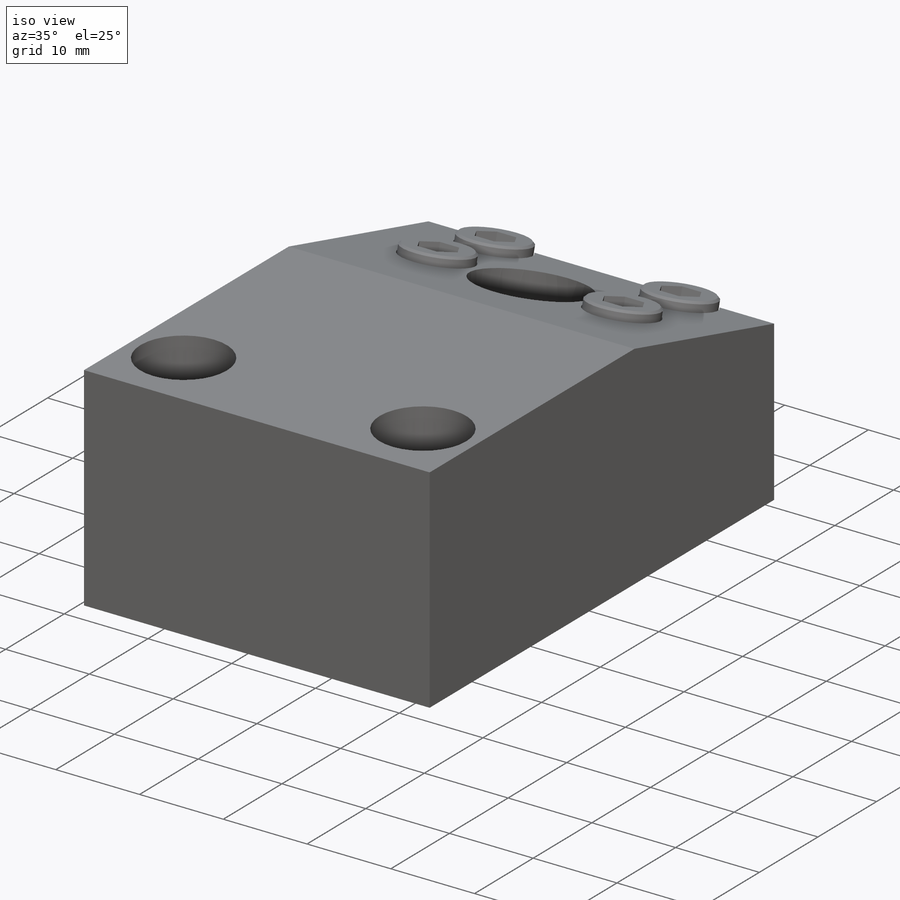
[diagram: iso view]
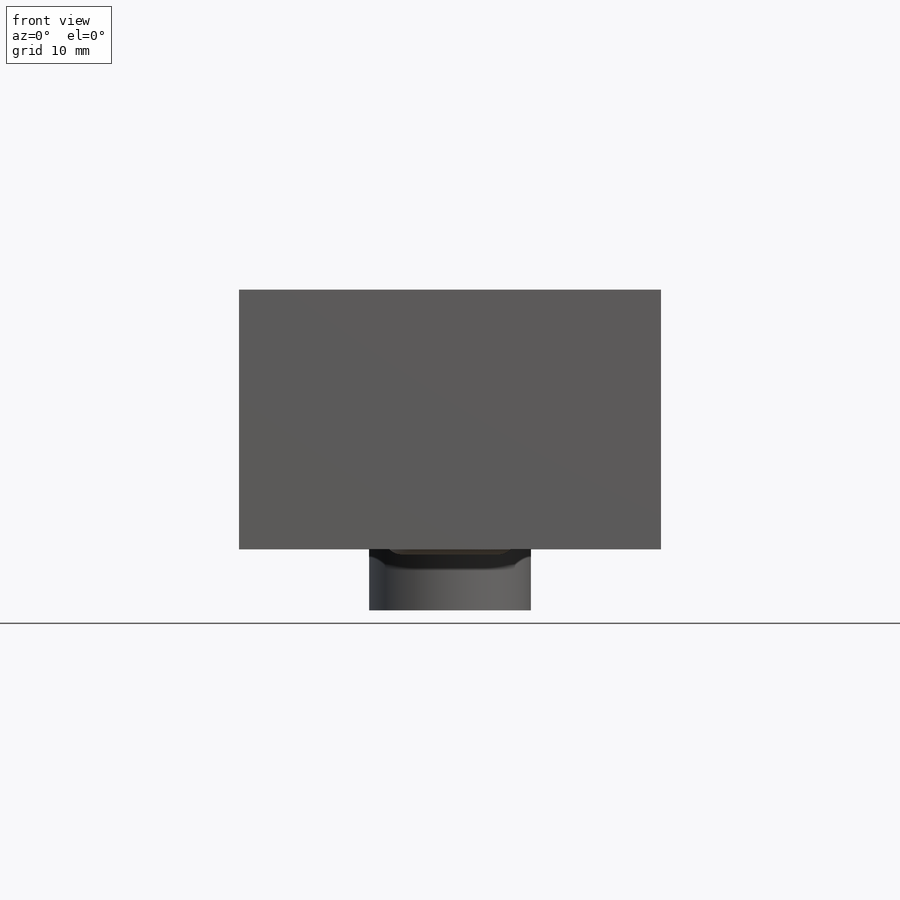
[diagram: front view]
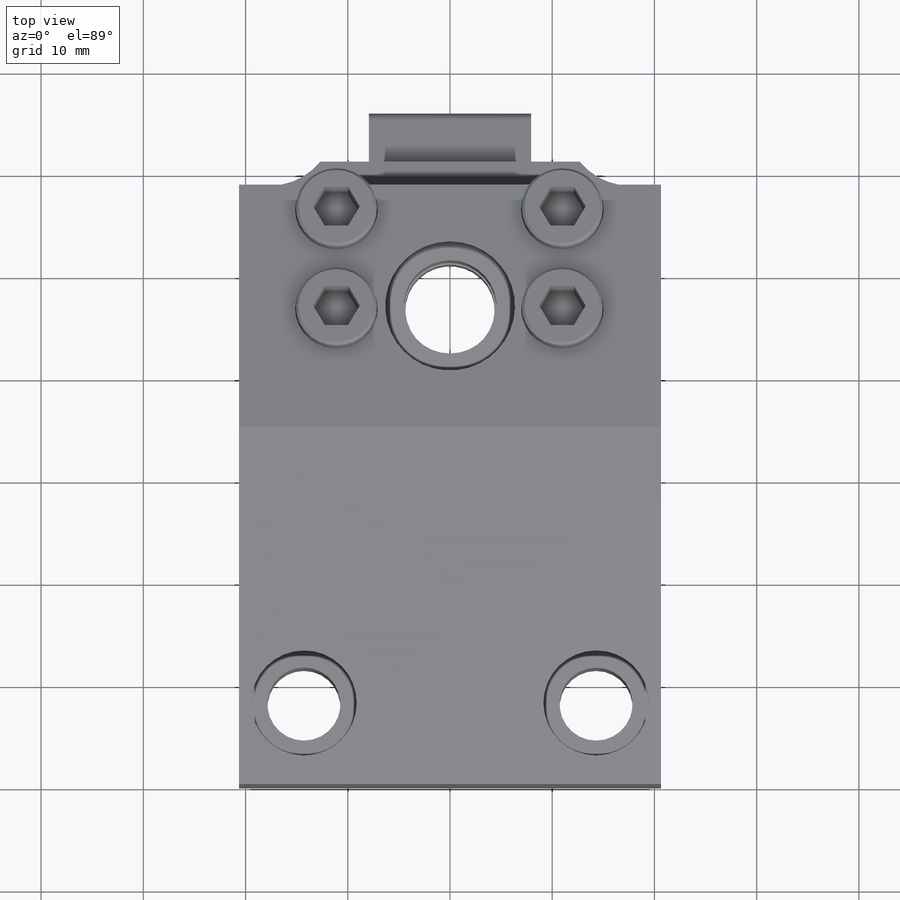
[diagram: top view]
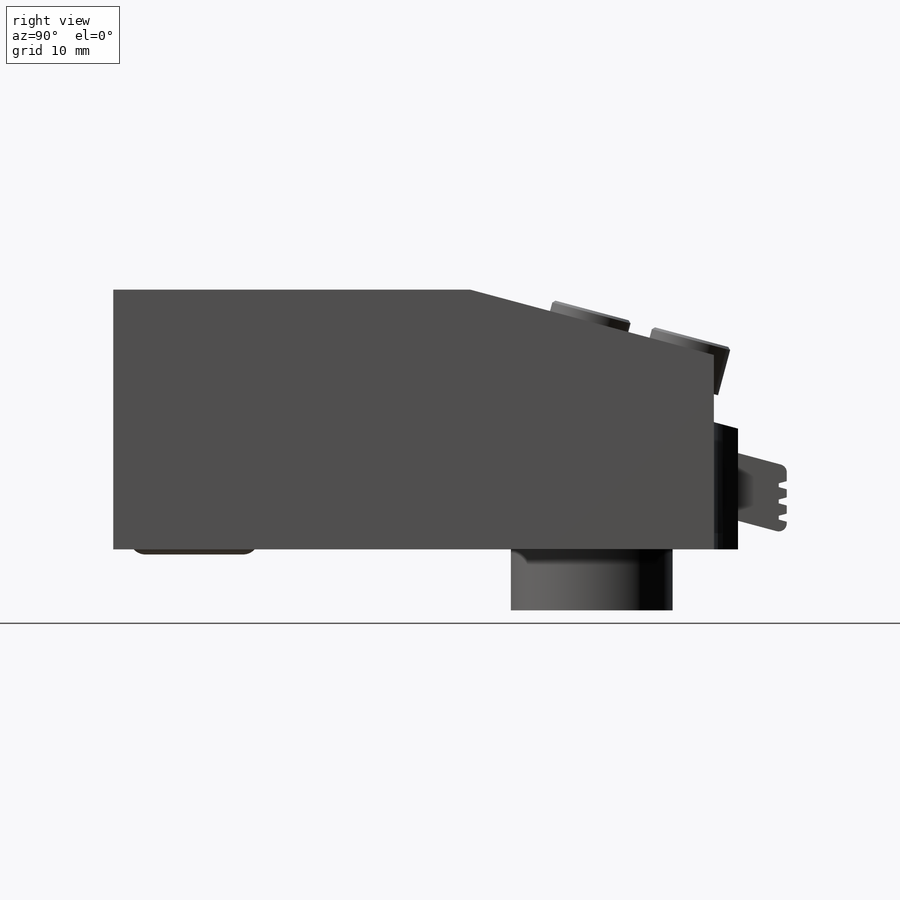
[diagram: right view]
SOLIDWORKS PART (.sldprt)
format: sldprt  version: not decoded by parser v0  size: 581,120 bytes
history: native  units: mm
features: sketch x13, plane x7, extrude x4, cut_extrude x4, cut_revolve x2, material x1, pattern_linear x1, fillet x1, revolve x1, hole x1, chamfer x1 (+11 scaffold rows collapsed)
feature tree (47):
  scaffold x11  (default folders/planes/origin — collapsed)
  material  "Alloy Steel"
  plane  "Plane1"
  sketch  "Sketch1"  dims[c1.D1=25.4mm c1.D2=34.925mm c1.D3=24.6634mm c2.D3=15.0deg c2.D4=~2.364385mm c2.D5=6.35mm c2.D6=61.1124mm]
  extrude  "Extrude1"  Depth=20.6375mm
  sketch  "Sketch2"  dims[D1=6.35mm D2=7.9375mm D3=~2.364385mm]
  cut_extrude  "Cut-Extrude1"  Depth=0mm
  plane  "Plane2"
  sketch  "Sketch3"  dims[c1.D1=~4.886643mm c1.D2=~17.338357mm c1.D3=3.175mm c2.D1=18.2372mm c2.D2=3.175mm c2.D3=6.35mm c2.D4=12.7mm c2.D5=9.1186mm c2.D6=3.175mm c2.D7=15.9512mm]
  cut_revolve  "Cut-Revolve1"  Angle=360deg
  plane  "Plane3"
  sketch  "Sketch4"  dims[D1=8.7376mm D2=15.8242mm]
  extrude  "Extrude2"  Depth=9.144mm
  plane  "Plane4"
  sketch  "S2D0005"  dims[D1=3.175mm D2=6.35mm D3=2.667mm D4=12.7mm]
  cut_revolve  "Cut-Revolve2"  Angle=360deg
  plane  "Plane5"
  sketch  "Sketch6"  dims[D1=6.4008mm D2=2.3114mm D3=4.7752mm]
  extrude  "Extrude3"  Depth=7.9375mm
  plane  "Plane6"
  sketch  "Sketch7"  dims[D1=~0.79375mm D2=1.5875mm D3=~0.79375mm D4=~0.368381mm]
  cut_extrude  "Cut-Extrude2"  Depth=49.53mm
  pattern_linear  "LPattern2"  Count1=3 Count2=1 Spacing1=1.5875mm Spacing2=2.54mm
  fillet  "Fillet1"  Radius=0.7874mm
  plane  "Plane9"
  sketch  "Sketch8"  dims[D1=3.175mm D2=9.525mm]
  revolve  "Revolve1"  Angle=360deg
  hole  "Hole1"  Diameter=7.1374mm Depth=31.369mm
  sketch  "Sketch10"  dims[D1=7.9248mm D2=28.575mm]
  sketch  "Sketch9"  dims[Diameter=7.1374mm Depth=31.369mm C-Bore Diameter=10.3124mm C-Bore Depth=6.35mm]
  sketch  "Sketch11"  dims[D1=8.0772mm D2=8.0772mm D3=8.0772mm D4=8.0772mm D5=9.525mm D6=2.54mm D7=10.0838mm D8=22.098mm]
  cut_extrude  "Cut-Extrude3"  Depth=3.7084mm
  sketch  "Sketch12"  dims[D1=7.9248mm D2=7.9248mm D3=7.9248mm D4=7.9248mm]
  extrude  "Boss-Extrude1"  Depth=4.826mm
  sketch  "Sketch13"  dims[c1.D1=~2.265289mm c2.D1=120.0deg c2.D2=3.9624mm]
  cut_extrude  "Cut-Extrude4"  Depth=2.286mm
  chamfer  "Chamfer1"  Distance=0.254mm Angle=45deg
decode coverage: 28 of 28 modeling features carry decoded parameters
note: ~ marks probable driven/reference dimensions
note: suppression state not decoded; provenance and decode notes live in map.json
